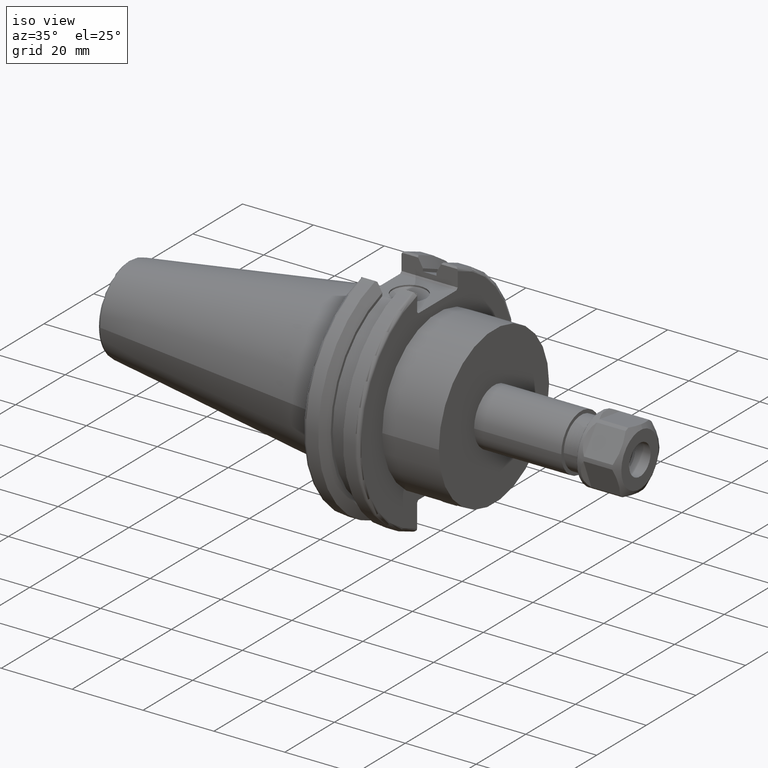
[diagram: clean part render]
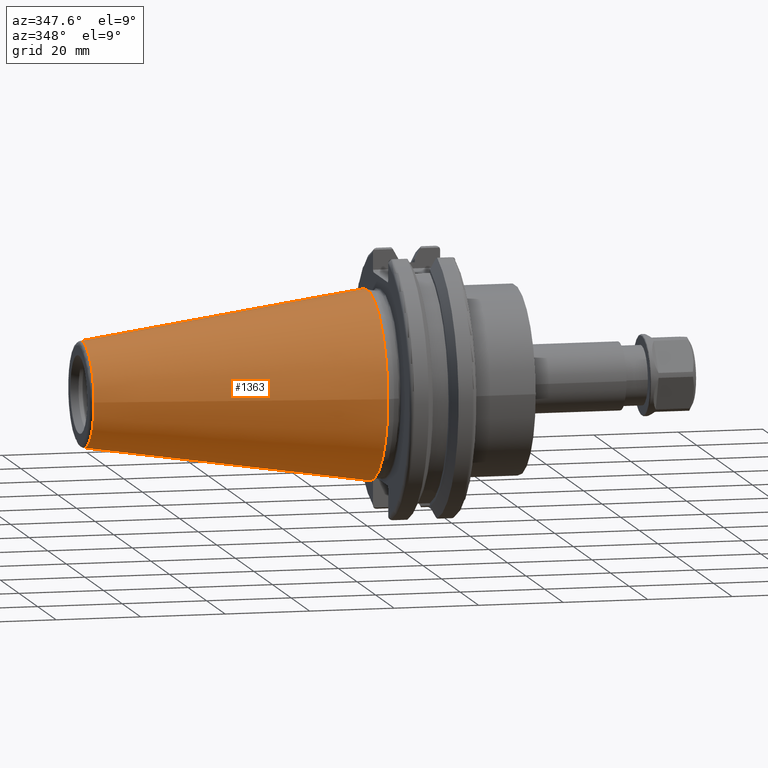
[diagram: tour spotlight — one face highlighted and labeled with its STEP entity id]
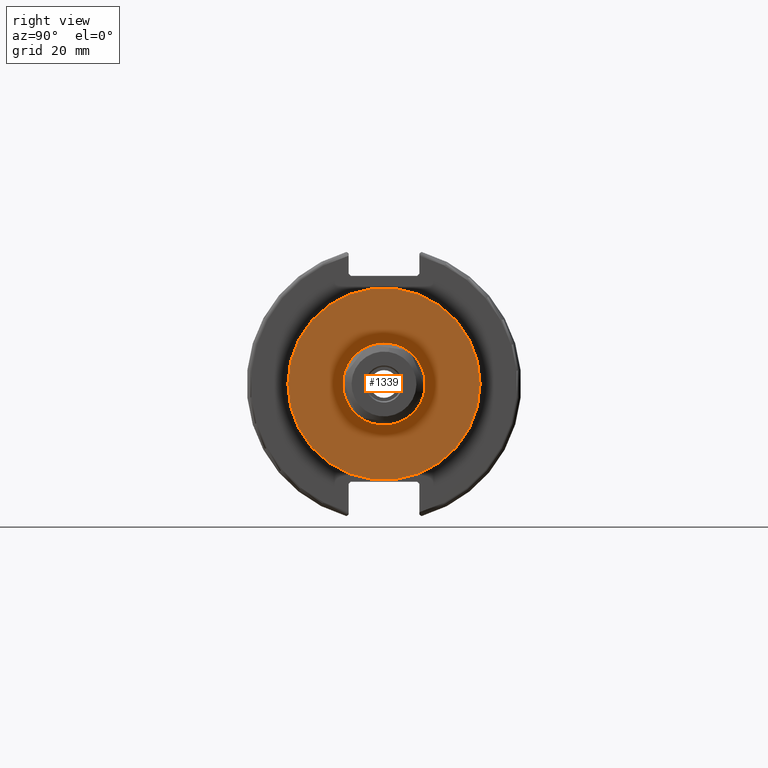
[diagram: tour spotlight — one face highlighted and labeled with its STEP entity id]
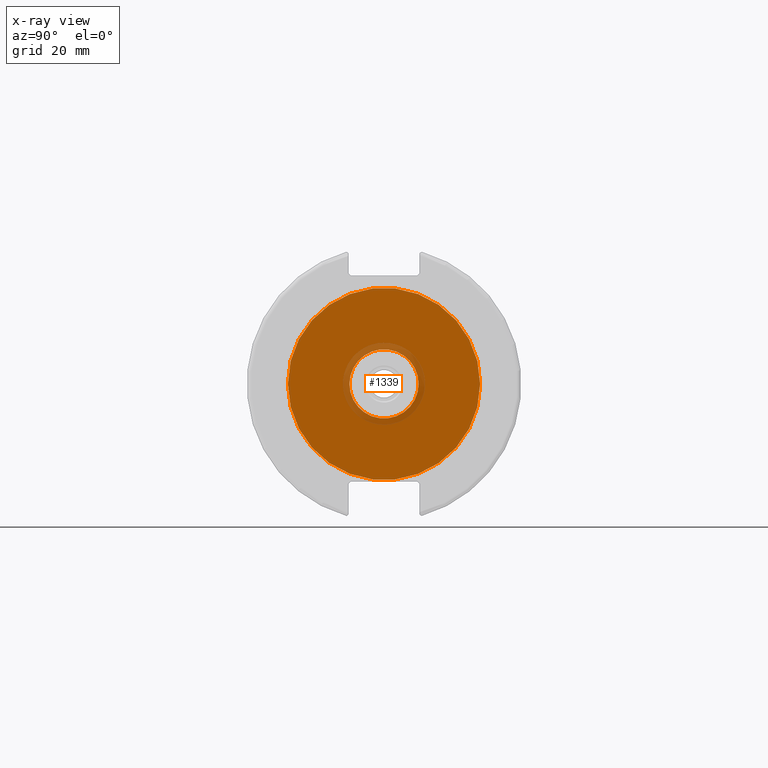
[diagram: x-ray of the same camera — body ghosted, this tour face saturated]
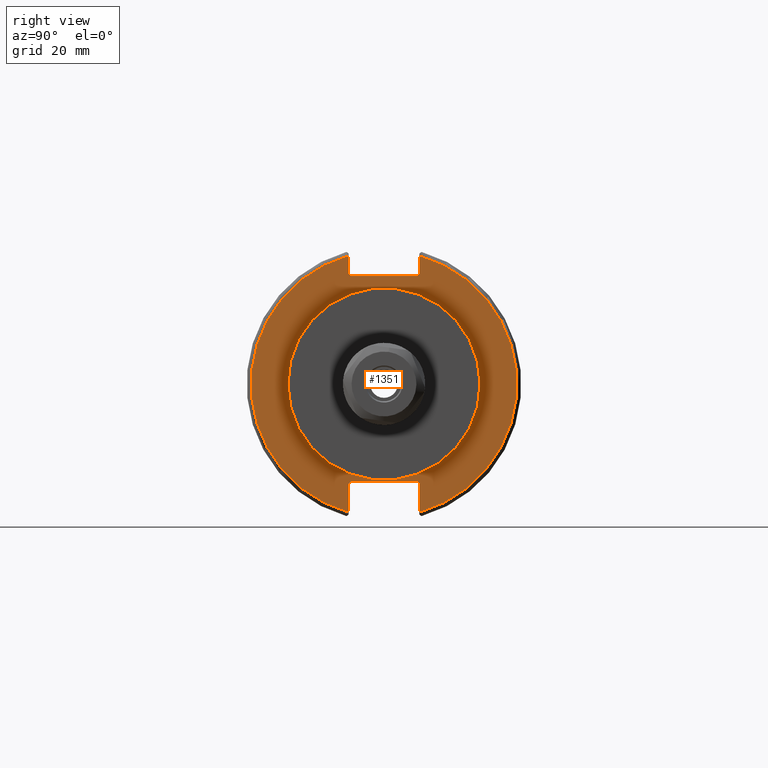
[diagram: tour spotlight — one face highlighted and labeled with its STEP entity id]
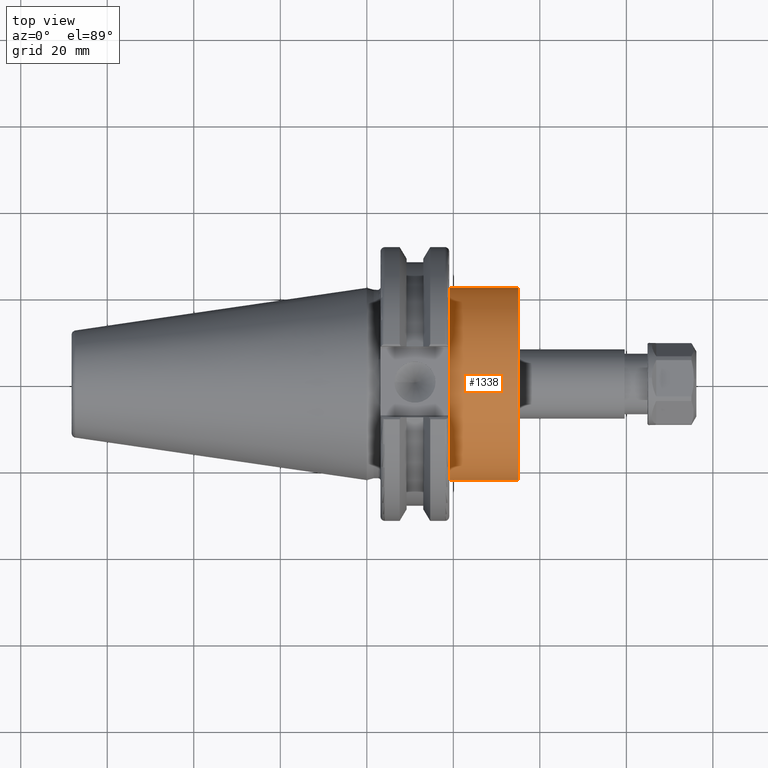
[diagram: tour spotlight — one face highlighted and labeled with its STEP entity id]
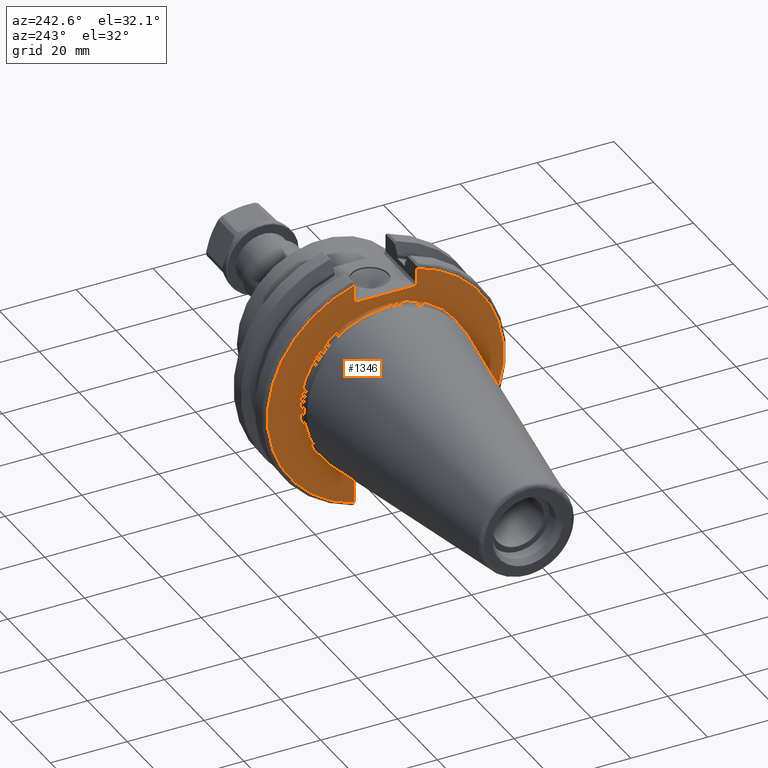
[diagram: tour spotlight — one face highlighted and labeled with its STEP entity id]
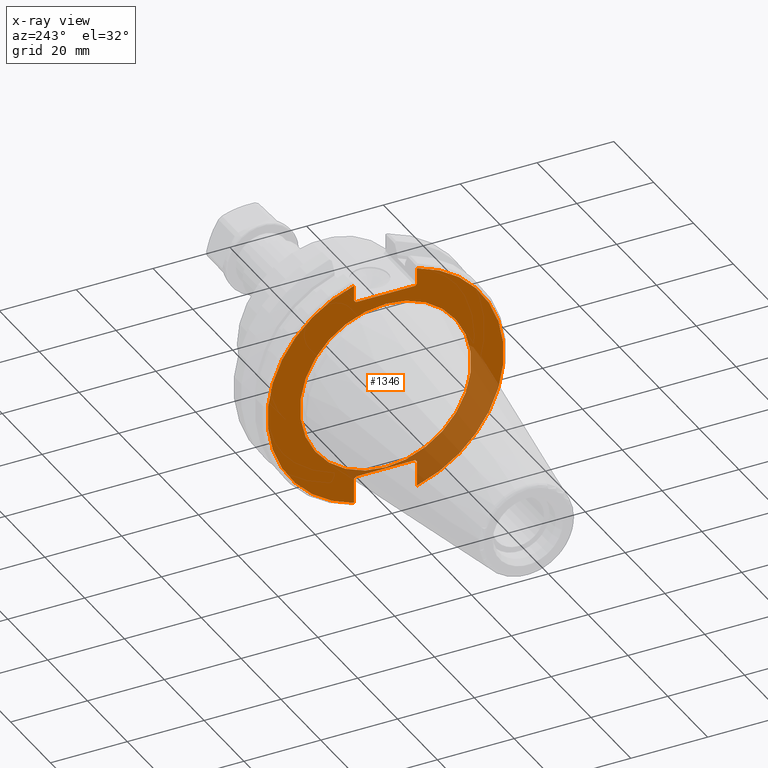
[diagram: x-ray of the same camera — body ghosted, this tour face saturated]
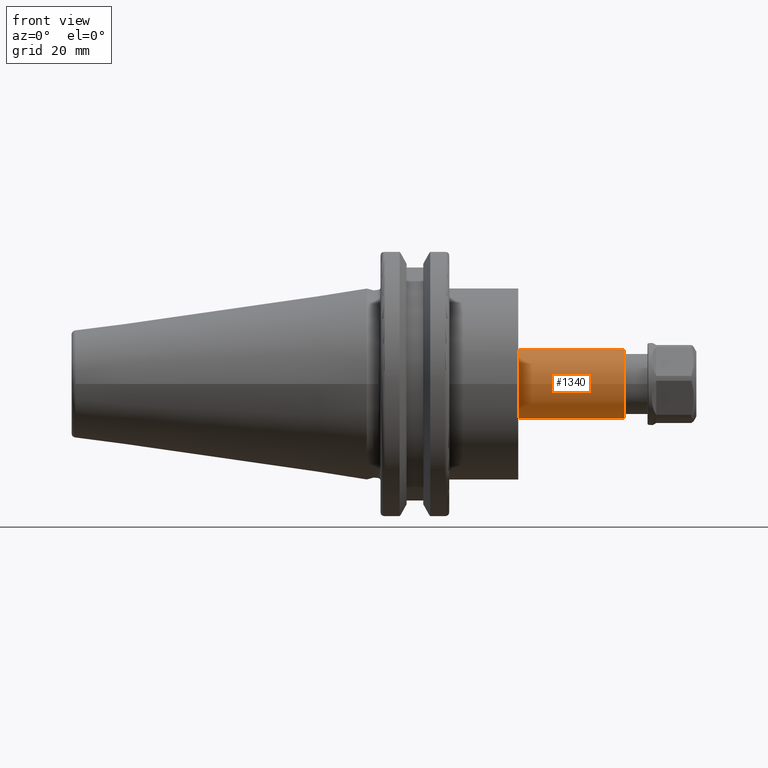
[diagram: tour spotlight — one face highlighted and labeled with its STEP entity id]
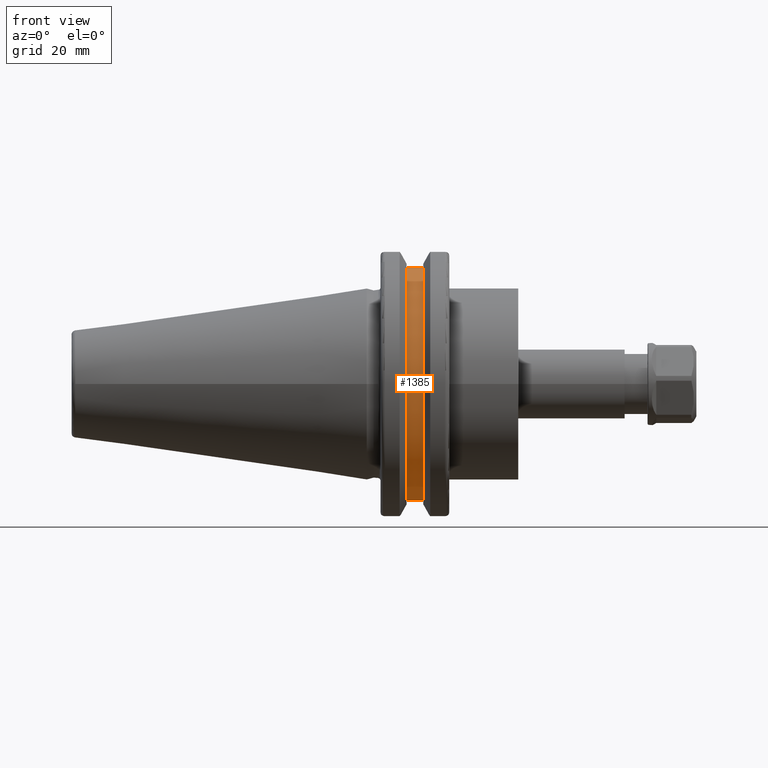
[diagram: tour spotlight — one face highlighted and labeled with its STEP entity id]
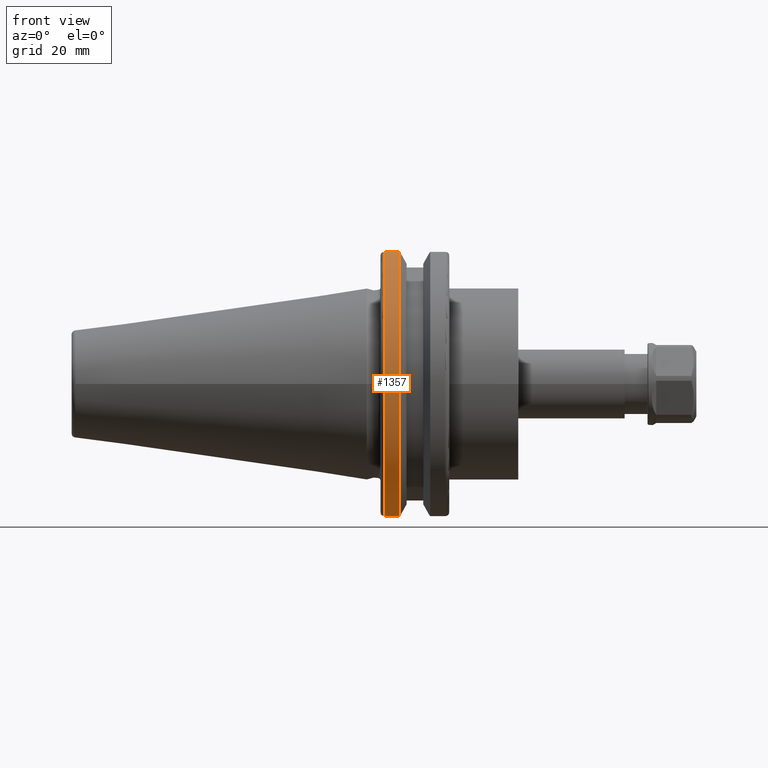
[diagram: tour spotlight — one face highlighted and labeled with its STEP entity id]
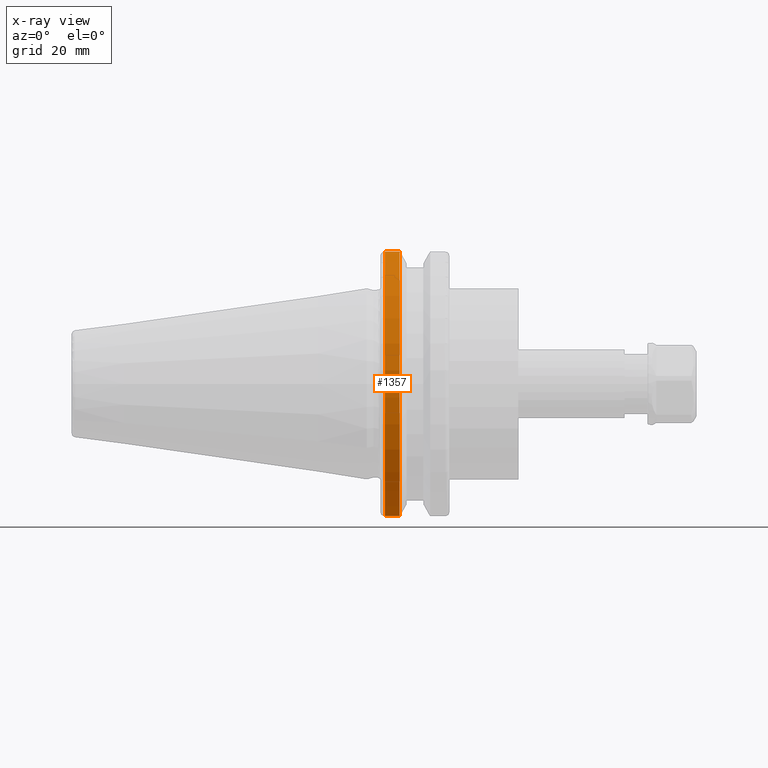
[diagram: x-ray of the same camera — body ghosted, this tour face saturated]
A machine part: a face-by-face anatomy tour. The part has 81 B-rep faces; the first image is the clean iso view, then the 8 largest visible faces are spotlighted one at a time (largest first), each with its STEP entity span.

Face 1 — auxiliary view, entity #1363. In plain terms, the highlighted conical surface has half-angle 8.297 deg.
Definition (entity closure, byte-faithful):
#139=CONICAL_SURFACE('',#1543,17.2484375,0.144812498238939);
#178=FACE_OUTER_BOUND('',#266,.T.);
#266=EDGE_LOOP('',(#1074,#1075,#1076,#1077,#1078));
#373=LINE('',#2387,#466);
#466=VECTOR('',#1820,17.2484375);
#536=CIRCLE('',#1537,12.3966635780937);
#537=CIRCLE('',#1538,12.3966635780937);
#541=CIRCLE('',#1544,22.225);
#652=VERTEX_POINT('',#2374);
#653=VERTEX_POINT('',#2375);
#656=VERTEX_POINT('',#2385);
#811=EDGE_CURVE('',#652,#653,#536,.T.);
#812=EDGE_CURVE('',#653,#652,#537,.T.);
#816=EDGE_CURVE('',#656,#656,#541,.T.);
#817=EDGE_CURVE('',#656,#653,#373,.T.);
#1074=ORIENTED_EDGE('',*,*,#816,.F.);
#1075=ORIENTED_EDGE('',*,*,#817,.T.);
#1076=ORIENTED_EDGE('',*,*,#811,.F.);
#1077=ORIENTED_EDGE('',*,*,#812,.F.);
#1078=ORIENTED_EDGE('',*,*,#817,.F.);
#1363=ADVANCED_FACE('',(#178),#139,.T.);
#1537=AXIS2_PLACEMENT_3D('',#2376,#1804,#1805);
#1538=AXIS2_PLACEMENT_3D('',#2377,#1806,#1807);
#1543=AXIS2_PLACEMENT_3D('',#2384,#1816,#1817);
#1544=AXIS2_PLACEMENT_3D('',#2386,#1818,#1819);
#1804=DIRECTION('center_axis',(-1.,0.,0.));
#1805=DIRECTION('ref_axis',(0.,-1.,3.06161699786838E-17));
#1806=DIRECTION('center_axis',(-1.,0.,0.));
#1807=DIRECTION('ref_axis',(0.,-1.,3.06161699786838E-17));
#1816=DIRECTION('center_axis',(1.,0.,0.));
#1817=DIRECTION('ref_axis',(0.,1.,0.));
#1818=DIRECTION('center_axis',(1.,0.,0.));
#1819=DIRECTION('ref_axis',(0.,0.,-1.));
#1820=DIRECTION('',(-0.989532981063282,0.144306893071729,1.76724974695192E-17));
#2374=CARTESIAN_POINT('',(-67.3943068930717,-1.5181534371019E-15,12.3966635780937));
#2375=CARTESIAN_POINT('',(-67.3943068930718,-12.3966635780937,-1.5181534371019E-15));
#2376=CARTESIAN_POINT('Origin',(-67.3943068930717,0.,-1.89769179637738E-15));
#2377=CARTESIAN_POINT('Origin',(-67.3943068930717,0.,-1.89769179637738E-15));
#2384=CARTESIAN_POINT('Origin',(-34.125,0.,0.));
#2385=CARTESIAN_POINT('',(0.,-22.225,-2.72177751110499E-15));
#2386=CARTESIAN_POINT('Origin',(0.,0.,0.));
#2387=CARTESIAN_POINT('',(-34.125,-17.2484375,-2.11232437746682E-15));

Face 2 — right view, entity #1339. An x-ray twin of the same camera follows (body ghosted, this face saturated) — the face is partly hidden behind the body. In plain terms, the highlighted planar face has unit normal (1, 0, 0).
Definition (entity closure, byte-faithful):
#81=FACE_BOUND('',#237,.T.);
#93=PLANE('',#1495);
#154=FACE_OUTER_BOUND('',#236,.T.);
#236=EDGE_LOOP('',(#933));
#237=EDGE_LOOP('',(#934));
#515=CIRCLE('',#1493,22.225);
#517=CIRCLE('',#1496,7.99999999999999);
#579=VERTEX_POINT('',#2068);
#581=VERTEX_POINT('',#2074);
#717=EDGE_CURVE('',#579,#579,#515,.T.);
#720=EDGE_CURVE('',#581,#581,#517,.T.);
#933=ORIENTED_EDGE('',*,*,#717,.T.);
#934=ORIENTED_EDGE('',*,*,#720,.F.);
#1339=ADVANCED_FACE('',(#154,#81),#93,.T.);
#1493=AXIS2_PLACEMENT_3D('',#2069,#1669,#1670);
#1495=AXIS2_PLACEMENT_3D('',#2073,#1674,#1675);
#1496=AXIS2_PLACEMENT_3D('',#2075,#1676,#1677);
#1669=DIRECTION('center_axis',(1.,0.,0.));
#1670=DIRECTION('ref_axis',(0.,0.,-1.));
#1674=DIRECTION('center_axis',(1.,0.,0.));
#1675=DIRECTION('ref_axis',(0.,0.,-1.));
#1676=DIRECTION('center_axis',(1.,0.,0.));
#1677=DIRECTION('ref_axis',(0.,0.,-1.));
#2068=CARTESIAN_POINT('',(35.,-22.225,-2.72177751110499E-15));
#2069=CARTESIAN_POINT('Origin',(35.,0.,0.));
#2073=CARTESIAN_POINT('Origin',(35.,7.99999999999999,0.));
#2074=CARTESIAN_POINT('',(35.,-7.99999999999999,-9.79717439317882E-16));
#2075=CARTESIAN_POINT('Origin',(35.,0.,0.));

Face 3 — right view, entity #1351. In plain terms, the highlighted planar face has unit normal (1, 0, 0).
Definition (entity closure, byte-faithful):
#85=FACE_BOUND('',#253,.T.);
#99=PLANE('',#1521);
#166=FACE_OUTER_BOUND('',#252,.T.);
#252=EDGE_LOOP('',(#996,#997,#998,#999,#1000,#1001,#1002,#1003,#1004,#1005,
#1006,#1007));
#253=EDGE_LOOP('',(#1008));
#343=LINE('',#2176,#436);
#349=LINE('',#2202,#442);
#350=LINE('',#2204,#443);
#351=LINE('',#2206,#444);
#352=LINE('',#2208,#445);
#353=LINE('',#2210,#446);
#354=LINE('',#2214,#447);
#355=LINE('',#2216,#448);
#356=LINE('',#2218,#449);
#357=LINE('',#2219,#450);
#436=VECTOR('',#1742,10.);
#442=VECTOR('',#1750,10.);
#443=VECTOR('',#1751,10.);
#444=VECTOR('',#1752,10.);
#445=VECTOR('',#1753,10.);
#446=VECTOR('',#1754,10.);
#447=VECTOR('',#1757,10.);
#448=VECTOR('',#1758,10.);
#449=VECTOR('',#1759,10.);
#450=VECTOR('',#1760,10.);
#516=CIRCLE('',#1494,22.225);
#529=CIRCLE('',#1517,30.75);
#531=CIRCLE('',#1522,30.75);
#580=VERTEX_POINT('',#2070);
#603=VERTEX_POINT('',#2131);
#604=VERTEX_POINT('',#2138);
#610=VERTEX_POINT('',#2175);
#617=VERTEX_POINT('',#2201);
#618=VERTEX_POINT('',#2203);
#619=VERTEX_POINT('',#2205);
#620=VERTEX_POINT('',#2207);
#621=VERTEX_POINT('',#2209);
#622=VERTEX_POINT('',#2211);
#623=VERTEX_POINT('',#2213);
#624=VERTEX_POINT('',#2215);
#625=VERTEX_POINT('',#2217);
#719=EDGE_CURVE('',#580,#580,#516,.T.);
#747=EDGE_CURVE('',#603,#604,#529,.T.);
#755=EDGE_CURVE('',#610,#604,#343,.T.);
#764=EDGE_CURVE('',#603,#617,#349,.T.);
#765=EDGE_CURVE('',#618,#617,#350,.T.);
#766=EDGE_CURVE('',#618,#619,#351,.T.);
#767=EDGE_CURVE('',#620,#619,#352,.T.);
#768=EDGE_CURVE('',#620,#621,#353,.T.);
#769=EDGE_CURVE('',#622,#621,#531,.T.);
#770=EDGE_CURVE('',#622,#623,#354,.T.);
#771=EDGE_CURVE('',#624,#623,#355,.T.);
#772=EDGE_CURVE('',#624,#625,#356,.T.);
#773=EDGE_CURVE('',#610,#625,#357,.T.);
#996=ORIENTED_EDGE('',*,*,#747,.F.);
#997=ORIENTED_EDGE('',*,*,#764,.T.);
#998=ORIENTED_EDGE('',*,*,#765,.F.);
#999=ORIENTED_EDGE('',*,*,#766,.T.);
#1000=ORIENTED_EDGE('',*,*,#767,.F.);
#1001=ORIENTED_EDGE('',*,*,#768,.T.);
#1002=ORIENTED_EDGE('',*,*,#769,.F.);
#1003=ORIENTED_EDGE('',*,*,#770,.T.);
#1004=ORIENTED_EDGE('',*,*,#771,.F.);
#1005=ORIENTED_EDGE('',*,*,#772,.T.);
#1006=ORIENTED_EDGE('',*,*,#773,.F.);
#1007=ORIENTED_EDGE('',*,*,#755,.T.);
#1008=ORIENTED_EDGE('',*,*,#719,.T.);
#1351=ADVANCED_FACE('',(#166,#85),#99,.T.);
#1494=AXIS2_PLACEMENT_3D('',#2072,#1672,#1673);
#1517=AXIS2_PLACEMENT_3D('',#2139,#1732,#1733);
#1521=AXIS2_PLACEMENT_3D('',#2200,#1748,#1749);
#1522=AXIS2_PLACEMENT_3D('',#2212,#1755,#1756);
#1672=DIRECTION('center_axis',(-1.,0.,0.));
#1673=DIRECTION('ref_axis',(0.,1.,0.));
#1732=DIRECTION('center_axis',(-1.,0.,0.));
#1733=DIRECTION('ref_axis',(0.,1.,-6.12323399573677E-17));
#1742=DIRECTION('',(0.,0.,-1.));
#1748=DIRECTION('center_axis',(1.,0.,0.));
#1749=DIRECTION('ref_axis',(0.,0.,-1.));
#1750=DIRECTION('',(0.,0.,-1.));
#1751=DIRECTION('',(0.,0.707106781186549,0.707106781186546));
#1752=DIRECTION('',(0.,-1.,0.));
#1753=DIRECTION('',(0.,0.70710678118655,-0.707106781186545));
#1754=DIRECTION('',(0.,0.,1.));
#1755=DIRECTION('center_axis',(-1.,0.,0.));
#1756=DIRECTION('ref_axis',(0.,-1.,1.60812264967664E-16));
#1757=DIRECTION('',(0.,0.,1.));
#1758=DIRECTION('',(0.,-0.707106781186549,-0.707106781186546));
#1759=DIRECTION('',(0.,1.,0.));
#1760=DIRECTION('',(0.,-0.707106781186549,0.707106781186546));
#2070=CARTESIAN_POINT('',(19.05,-22.225,-2.72177751110499E-15));
#2072=CARTESIAN_POINT('Origin',(19.05,0.,0.));
#2131=CARTESIAN_POINT('',(19.05,8.19,29.6392712461019));
#2138=CARTESIAN_POINT('',(19.05,8.19,-29.6392712461019));
#2139=CARTESIAN_POINT('Origin',(19.05,0.,0.));
#2175=CARTESIAN_POINT('',(19.05,8.19,-23.1));
#2176=CARTESIAN_POINT('',(19.05,8.19,-11.3));
#2200=CARTESIAN_POINT('Origin',(19.05,0.,0.));
#2201=CARTESIAN_POINT('',(19.05,8.19,25.5));
#2202=CARTESIAN_POINT('',(19.05,8.19,12.5));
#2203=CARTESIAN_POINT('',(19.05,7.69,25.));
#2204=CARTESIAN_POINT('',(19.05,-0.35750000000001,16.9525));
#2205=CARTESIAN_POINT('',(19.05,-7.69,25.));
#2206=CARTESIAN_POINT('',(19.05,0.,25.));
#2207=CARTESIAN_POINT('',(19.05,-8.19,25.5));
#2208=CARTESIAN_POINT('',(19.05,0.357500000000014,16.9525));
#2209=CARTESIAN_POINT('',(19.05,-8.19,29.6392712461019));
#2210=CARTESIAN_POINT('',(19.05,-8.19,12.5));
#2211=CARTESIAN_POINT('',(19.05,-8.19,-29.6392712461019));
#2212=CARTESIAN_POINT('Origin',(19.05,0.,0.));
#2213=CARTESIAN_POINT('',(19.05,-8.19,-23.1));
#2214=CARTESIAN_POINT('',(19.05,-8.19,-11.3));
#2215=CARTESIAN_POINT('',(19.05,-7.69,-22.6));
#2216=CARTESIAN_POINT('',(19.05,-0.242499999999991,-15.1525));
#2217=CARTESIAN_POINT('',(19.05,7.69,-22.6));
#2218=CARTESIAN_POINT('',(19.05,-2.77555756156289E-16,-22.6));
#2219=CARTESIAN_POINT('',(19.05,0.242499999999989,-15.1525));

Face 4 — top view, entity #1338. In plain terms, the highlighted cylindrical surface (bore or boss wall) has radius 22.225 mm, axis along (1, 0, 0).
Definition (entity closure, byte-faithful):
#153=FACE_OUTER_BOUND('',#235,.T.);
#235=EDGE_LOOP('',(#929,#930,#931,#932));
#326=LINE('',#2071,#419);
#419=VECTOR('',#1671,22.225);
#515=CIRCLE('',#1493,22.225);
#516=CIRCLE('',#1494,22.225);
#579=VERTEX_POINT('',#2068);
#580=VERTEX_POINT('',#2070);
#717=EDGE_CURVE('',#579,#579,#515,.T.);
#718=EDGE_CURVE('',#579,#580,#326,.T.);
#719=EDGE_CURVE('',#580,#580,#516,.T.);
#929=ORIENTED_EDGE('',*,*,#717,.F.);
#930=ORIENTED_EDGE('',*,*,#718,.T.);
#931=ORIENTED_EDGE('',*,*,#719,.F.);
#932=ORIENTED_EDGE('',*,*,#718,.F.);
#1318=CYLINDRICAL_SURFACE('',#1492,22.225);
#1338=ADVANCED_FACE('',(#153),#1318,.T.);
#1492=AXIS2_PLACEMENT_3D('',#2067,#1667,#1668);
#1493=AXIS2_PLACEMENT_3D('',#2069,#1669,#1670);
#1494=AXIS2_PLACEMENT_3D('',#2072,#1672,#1673);
#1667=DIRECTION('center_axis',(1.,0.,0.));
#1668=DIRECTION('ref_axis',(0.,1.,0.));
#1669=DIRECTION('center_axis',(1.,0.,0.));
#1670=DIRECTION('ref_axis',(0.,0.,-1.));
#1671=DIRECTION('',(-1.,0.,0.));
#1672=DIRECTION('center_axis',(-1.,0.,0.));
#1673=DIRECTION('ref_axis',(0.,1.,0.));
#2067=CARTESIAN_POINT('Origin',(27.025,0.,0.));
#2068=CARTESIAN_POINT('',(35.,-22.225,-2.72177751110499E-15));
#2069=CARTESIAN_POINT('Origin',(35.,0.,0.));
#2070=CARTESIAN_POINT('',(19.05,-22.225,-2.72177751110499E-15));
#2071=CARTESIAN_POINT('',(27.025,-22.225,-2.72177751110499E-15));
#2072=CARTESIAN_POINT('Origin',(19.05,0.,0.));

Face 5 — auxiliary view, entity #1346. An x-ray twin of the same camera follows (body ghosted, this face saturated) — the face is partly hidden behind the body. In plain terms, the highlighted planar face has unit normal (-1, 0, 0).
Definition (entity closure, byte-faithful):
#84=FACE_BOUND('',#247,.T.);
#96=PLANE('',#1511);
#161=FACE_OUTER_BOUND('',#246,.T.);
#246=EDGE_LOOP('',(#956,#957,#958,#959,#960,#961,#962,#963,#964,#965,#966,
#967));
#247=EDGE_LOOP('',(#968));
#330=LINE('',#2105,#423);
#331=LINE('',#2107,#424);
#332=LINE('',#2109,#425);
#333=LINE('',#2111,#426);
#334=LINE('',#2113,#427);
#335=LINE('',#2117,#428);
#336=LINE('',#2119,#429);
#337=LINE('',#2121,#430);
#338=LINE('',#2123,#431);
#339=LINE('',#2124,#432);
#423=VECTOR('',#1713,10.);
#424=VECTOR('',#1714,10.);
#425=VECTOR('',#1715,10.);
#426=VECTOR('',#1716,10.);
#427=VECTOR('',#1717,10.);
#428=VECTOR('',#1720,10.);
#429=VECTOR('',#1721,10.);
#430=VECTOR('',#1722,10.);
#431=VECTOR('',#1723,10.);
#432=VECTOR('',#1724,10.);
#524=CIRCLE('',#1509,22.3);
#526=CIRCLE('',#1512,30.75);
#527=CIRCLE('',#1513,30.75);
#588=VERTEX_POINT('',#2096);
#589=VERTEX_POINT('',#2101);
#590=VERTEX_POINT('',#2102);
#591=VERTEX_POINT('',#2104);
#592=VERTEX_POINT('',#2106);
#593=VERTEX_POINT('',#2108);
#594=VERTEX_POINT('',#2110);
#595=VERTEX_POINT('',#2112);
#596=VERTEX_POINT('',#2114);
#597=VERTEX_POINT('',#2116);
#598=VERTEX_POINT('',#2118);
#599=VERTEX_POINT('',#2120);
#600=VERTEX_POINT('',#2122);
#730=EDGE_CURVE('',#588,#588,#524,.T.);
#732=EDGE_CURVE('',#589,#590,#526,.T.);
#733=EDGE_CURVE('',#589,#591,#330,.T.);
#734=EDGE_CURVE('',#592,#591,#331,.T.);
#735=EDGE_CURVE('',#592,#593,#332,.T.);
#736=EDGE_CURVE('',#594,#593,#333,.T.);
#737=EDGE_CURVE('',#594,#595,#334,.T.);
#738=EDGE_CURVE('',#596,#595,#527,.T.);
#739=EDGE_CURVE('',#596,#597,#335,.T.);
#740=EDGE_CURVE('',#598,#597,#336,.T.);
#741=EDGE_CURVE('',#598,#599,#337,.T.);
#742=EDGE_CURVE('',#600,#599,#338,.T.);
#743=EDGE_CURVE('',#600,#590,#339,.T.);
#956=ORIENTED_EDGE('',*,*,#732,.F.);
#957=ORIENTED_EDGE('',*,*,#733,.T.);
#958=ORIENTED_EDGE('',*,*,#734,.F.);
#959=ORIENTED_EDGE('',*,*,#735,.T.);
#960=ORIENTED_EDGE('',*,*,#736,.F.);
#961=ORIENTED_EDGE('',*,*,#737,.T.);
#962=ORIENTED_EDGE('',*,*,#738,.F.);
#963=ORIENTED_EDGE('',*,*,#739,.T.);
#964=ORIENTED_EDGE('',*,*,#740,.F.);
#965=ORIENTED_EDGE('',*,*,#741,.T.);
#966=ORIENTED_EDGE('',*,*,#742,.F.);
#967=ORIENTED_EDGE('',*,*,#743,.T.);
#968=ORIENTED_EDGE('',*,*,#730,.F.);
#1346=ADVANCED_FACE('',(#161,#84),#96,.T.);
#1509=AXIS2_PLACEMENT_3D('',#2098,#1705,#1706);
#1511=AXIS2_PLACEMENT_3D('',#2100,#1709,#1710);
#1512=AXIS2_PLACEMENT_3D('',#2103,#1711,#1712);
#1513=AXIS2_PLACEMENT_3D('',#2115,#1718,#1719);
#1705=DIRECTION('center_axis',(-1.,0.,0.));
#1706=DIRECTION('ref_axis',(0.,-1.,1.83697019872103E-16));
#1709=DIRECTION('center_axis',(-1.,0.,0.));
#1710=DIRECTION('ref_axis',(0.,0.,1.));
#1711=DIRECTION('center_axis',(1.,0.,0.));
#1712=DIRECTION('ref_axis',(0.,-1.,1.60812264967664E-16));
#1713=DIRECTION('',(0.,0.,-1.));
#1714=DIRECTION('',(0.,-0.70710678118655,0.707106781186545));
#1715=DIRECTION('',(0.,1.,0.));
#1716=DIRECTION('',(0.,-0.707106781186549,-0.707106781186546));
#1717=DIRECTION('',(0.,0.,1.));
#1718=DIRECTION('center_axis',(1.,0.,0.));
#1719=DIRECTION('ref_axis',(0.,1.,1.60812264967664E-16));
#1720=DIRECTION('',(0.,0.,1.));
#1721=DIRECTION('',(0.,0.707106781186549,-0.707106781186546));
#1722=DIRECTION('',(0.,-1.,0.));
#1723=DIRECTION('',(0.,0.707106781186549,0.707106781186546));
#1724=DIRECTION('',(0.,0.,-1.));
#2096=CARTESIAN_POINT('',(3.175,-2.7309623620986E-15,22.3));
#2098=CARTESIAN_POINT('Origin',(3.175,0.,0.));
#2100=CARTESIAN_POINT('Origin',(3.175,31.75,0.));
#2101=CARTESIAN_POINT('',(3.175,-8.18999999999999,29.6392712461019));
#2102=CARTESIAN_POINT('',(3.175,-8.19,-29.6392712461019));
#2103=CARTESIAN_POINT('Origin',(3.175,0.,0.));
#2104=CARTESIAN_POINT('',(3.175,-8.18999999999999,25.5));
#2105=CARTESIAN_POINT('',(3.175,-8.18999999999999,12.5));
#2106=CARTESIAN_POINT('',(3.175,-7.68999999999999,25.));
#2107=CARTESIAN_POINT('',(3.175,8.29500000000007,9.01500000000004));
#2108=CARTESIAN_POINT('',(3.175,7.69,25.));
#2109=CARTESIAN_POINT('',(3.175,15.875,25.));
#2110=CARTESIAN_POINT('',(3.175,8.19,25.5));
#2111=CARTESIAN_POINT('',(3.175,7.58000000000002,24.89));
#2112=CARTESIAN_POINT('',(3.175,8.19,29.6392712461019));
#2113=CARTESIAN_POINT('',(3.175,8.19,12.5));
#2114=CARTESIAN_POINT('',(3.175,8.18999999999999,-29.6392712461019));
#2115=CARTESIAN_POINT('Origin',(3.175,0.,0.));
#2116=CARTESIAN_POINT('',(3.175,8.18999999999999,-23.1));
#2117=CARTESIAN_POINT('',(3.175,8.18999999999999,-11.3));
#2118=CARTESIAN_POINT('',(3.175,7.69,-22.6));
#2119=CARTESIAN_POINT('',(3.175,8.18000000000002,-23.09));
#2120=CARTESIAN_POINT('',(3.175,-7.69,-22.6));
#2121=CARTESIAN_POINT('',(3.175,15.875,-22.6));
#2122=CARTESIAN_POINT('',(3.175,-8.19,-23.1));
#2123=CARTESIAN_POINT('',(3.175,7.69500000000004,-7.21500000000002));
#2124=CARTESIAN_POINT('',(3.175,-8.19,-11.3));

Face 6 — front view, entity #1340. In plain terms, the highlighted cylindrical surface (bore or boss wall) has radius 8 mm, axis along (1, 0, 0).
Definition (entity closure, byte-faithful):
#155=FACE_OUTER_BOUND('',#238,.T.);
#238=EDGE_LOOP('',(#935,#936,#937,#938));
#327=LINE('',#2079,#420);
#420=VECTOR('',#1682,7.99999999999999);
#517=CIRCLE('',#1496,7.99999999999999);
#518=CIRCLE('',#1498,8.);
#581=VERTEX_POINT('',#2074);
#582=VERTEX_POINT('',#2077);
#720=EDGE_CURVE('',#581,#581,#517,.T.);
#721=EDGE_CURVE('',#582,#582,#518,.T.);
#722=EDGE_CURVE('',#582,#581,#327,.T.);
#935=ORIENTED_EDGE('',*,*,#721,.F.);
#936=ORIENTED_EDGE('',*,*,#722,.T.);
#937=ORIENTED_EDGE('',*,*,#720,.T.);
#938=ORIENTED_EDGE('',*,*,#722,.F.);
#1319=CYLINDRICAL_SURFACE('',#1497,7.99999999999999);
#1340=ADVANCED_FACE('',(#155),#1319,.T.);
#1496=AXIS2_PLACEMENT_3D('',#2075,#1676,#1677);
#1497=AXIS2_PLACEMENT_3D('',#2076,#1678,#1679);
#1498=AXIS2_PLACEMENT_3D('',#2078,#1680,#1681);
#1676=DIRECTION('center_axis',(1.,0.,0.));
#1677=DIRECTION('ref_axis',(0.,0.,-1.));
#1678=DIRECTION('center_axis',(1.,0.,0.));
#1679=DIRECTION('ref_axis',(0.,1.,0.));
#1680=DIRECTION('center_axis',(1.,0.,0.));
#1681=DIRECTION('ref_axis',(0.,0.,-1.));
#1682=DIRECTION('',(-1.,0.,0.));
#2074=CARTESIAN_POINT('',(35.,-7.99999999999999,-9.79717439317882E-16));
#2075=CARTESIAN_POINT('Origin',(35.,0.,0.));
#2076=CARTESIAN_POINT('Origin',(47.3,0.,0.));
#2077=CARTESIAN_POINT('',(59.6,-7.99999999999999,-9.79717439317882E-16));
#2078=CARTESIAN_POINT('Origin',(59.6,0.,0.));
#2079=CARTESIAN_POINT('',(47.3,-7.99999999999999,-9.79717439317882E-16));

Face 7 — front view, entity #1385. In plain terms, the highlighted cylindrical surface (partial cylindrical patch) has radius 28.15 mm, axis along (1, 0, 0).
Definition (entity closure, byte-faithful):
#200=FACE_OUTER_BOUND('',#288,.T.);
#288=EDGE_LOOP('',(#1176,#1177,#1178,#1179));
#361=LINE('',#2272,#454);
#366=LINE('',#2290,#459);
#454=VECTOR('',#1770,10.);
#459=VECTOR('',#1777,10.);
#551=CIRCLE('',#1574,28.15);
#553=CIRCLE('',#1578,28.15);
#633=VERTEX_POINT('',#2269);
#634=VERTEX_POINT('',#2271);
#639=VERTEX_POINT('',#2287);
#640=VERTEX_POINT('',#2289);
#784=EDGE_CURVE('',#634,#633,#361,.T.);
#791=EDGE_CURVE('',#640,#639,#366,.T.);
#849=EDGE_CURVE('',#633,#640,#551,.T.);
#851=EDGE_CURVE('',#634,#639,#553,.T.);
#1176=ORIENTED_EDGE('',*,*,#791,.T.);
#1177=ORIENTED_EDGE('',*,*,#851,.F.);
#1178=ORIENTED_EDGE('',*,*,#784,.T.);
#1179=ORIENTED_EDGE('',*,*,#849,.T.);
#1328=CYLINDRICAL_SURFACE('',#1577,28.15);
#1385=ADVANCED_FACE('',(#200),#1328,.T.);
#1574=AXIS2_PLACEMENT_3D('',#2464,#1895,#1896);
#1577=AXIS2_PLACEMENT_3D('',#2467,#1901,#1902);
#1578=AXIS2_PLACEMENT_3D('',#2468,#1903,#1904);
#1770=DIRECTION('',(-1.,0.,0.));
#1777=DIRECTION('',(1.,0.,0.));
#1895=DIRECTION('center_axis',(1.,0.,0.));
#1896=DIRECTION('ref_axis',(0.,0.,-1.));
#1901=DIRECTION('center_axis',(1.,0.,0.));
#1902=DIRECTION('ref_axis',(0.,-1.,-1.22464679914735E-16));
#1903=DIRECTION('center_axis',(1.,0.,0.));
#1904=DIRECTION('ref_axis',(0.,0.,-1.));
#2269=CARTESIAN_POINT('',(9.212,-8.19,26.932255754021));
#2271=CARTESIAN_POINT('',(13.042,-8.19,26.932255754021));
#2272=CARTESIAN_POINT('',(11.127,-8.19,26.932255754021));
#2287=CARTESIAN_POINT('',(13.042,-8.19,-26.932255754021));
#2289=CARTESIAN_POINT('',(9.212,-8.19,-26.932255754021));
#2290=CARTESIAN_POINT('',(11.127,-8.19,-26.932255754021));
#2464=CARTESIAN_POINT('Origin',(9.212,0.,0.));
#2467=CARTESIAN_POINT('Origin',(11.127,0.,0.));
#2468=CARTESIAN_POINT('Origin',(13.042,0.,0.));

Face 8 — front view, entity #1357. An x-ray twin of the same camera follows (body ghosted, this face saturated) — the face is partly hidden behind the body. In plain terms, the highlighted cylindrical surface (partial cylindrical patch) has radius 31.75 mm, axis along (1, 0, 0).
Definition (entity closure, byte-faithful):
#172=FACE_OUTER_BOUND('',#259,.T.);
#259=EDGE_LOOP('',(#1049,#1050,#1051,#1052));
#370=LINE('',#2328,#463);
#371=LINE('',#2334,#464);
#463=VECTOR('',#1787,10.);
#464=VECTOR('',#1790,10.);
#533=CIRCLE('',#1528,31.75);
#534=CIRCLE('',#1531,31.75);
#644=VERTEX_POINT('',#2307);
#645=VERTEX_POINT('',#2316);
#646=VERTEX_POINT('',#2327);
#647=VERTEX_POINT('',#2333);
#798=EDGE_CURVE('',#644,#645,#533,.T.);
#800=EDGE_CURVE('',#645,#646,#370,.T.);
#802=EDGE_CURVE('',#647,#644,#371,.T.);
#803=EDGE_CURVE('',#646,#647,#534,.T.);
#1049=ORIENTED_EDGE('',*,*,#798,.F.);
#1050=ORIENTED_EDGE('',*,*,#802,.F.);
#1051=ORIENTED_EDGE('',*,*,#803,.F.);
#1052=ORIENTED_EDGE('',*,*,#800,.F.);
#1322=CYLINDRICAL_SURFACE('',#1530,31.75);
#1357=ADVANCED_FACE('',(#172),#1322,.T.);
#1528=AXIS2_PLACEMENT_3D('',#2317,#1783,#1784);
#1530=AXIS2_PLACEMENT_3D('',#2332,#1788,#1789);
#1531=AXIS2_PLACEMENT_3D('',#2335,#1791,#1792);
#1783=DIRECTION('center_axis',(-1.,0.,0.));
#1784=DIRECTION('ref_axis',(0.,-1.,1.60812264967664E-16));
#1787=DIRECTION('',(1.,0.,0.));
#1788=DIRECTION('center_axis',(1.,0.,0.));
#1789=DIRECTION('ref_axis',(0.,-1.,1.22464679914735E-16));
#1790=DIRECTION('',(-1.,0.,0.));
#1791=DIRECTION('center_axis',(1.,0.,0.));
#1792=DIRECTION('ref_axis',(0.,0.,-1.));
#2307=CARTESIAN_POINT('',(4.175,-8.67204822802685,-30.5427254764662));
#2316=CARTESIAN_POINT('',(4.175,-8.67204822802685,30.5427254764662));
#2317=CARTESIAN_POINT('Origin',(4.175,0.,0.));
#2327=CARTESIAN_POINT('',(7.60083323092435,-8.67204822802685,30.5427254764662));
#2328=CARTESIAN_POINT('',(5.38791661546218,-8.67204822802685,30.5427254764662));
#2332=CARTESIAN_POINT('Origin',(5.38791661546218,0.,0.));
#2333=CARTESIAN_POINT('',(7.60083323092435,-8.67204822802685,-30.5427254764662));
#2334=CARTESIAN_POINT('',(5.38791661546218,-8.67204822802685,-30.5427254764662));
#2335=CARTESIAN_POINT('Origin',(7.60083323092435,0.,0.));